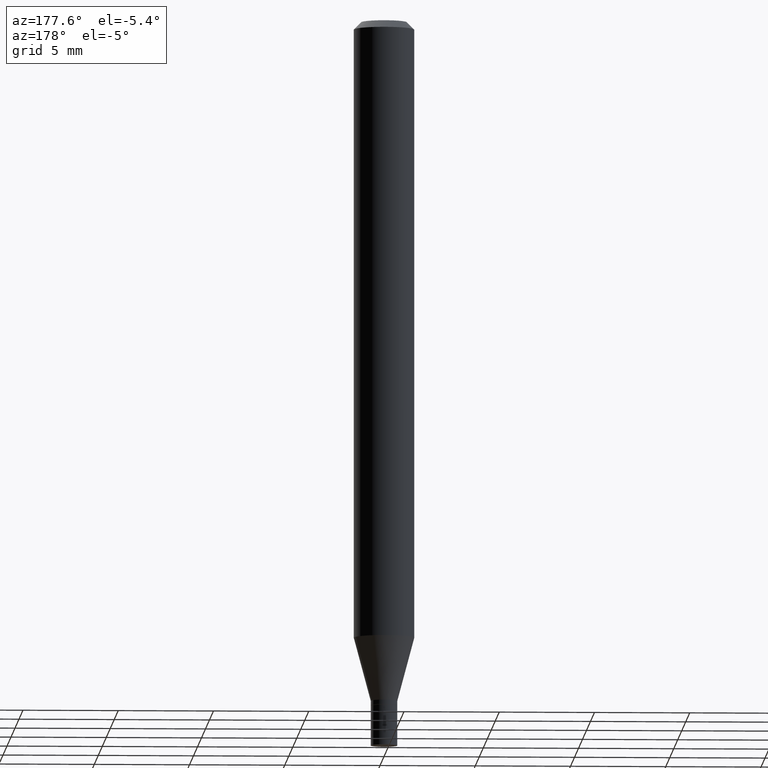
[diagram: clean part render]
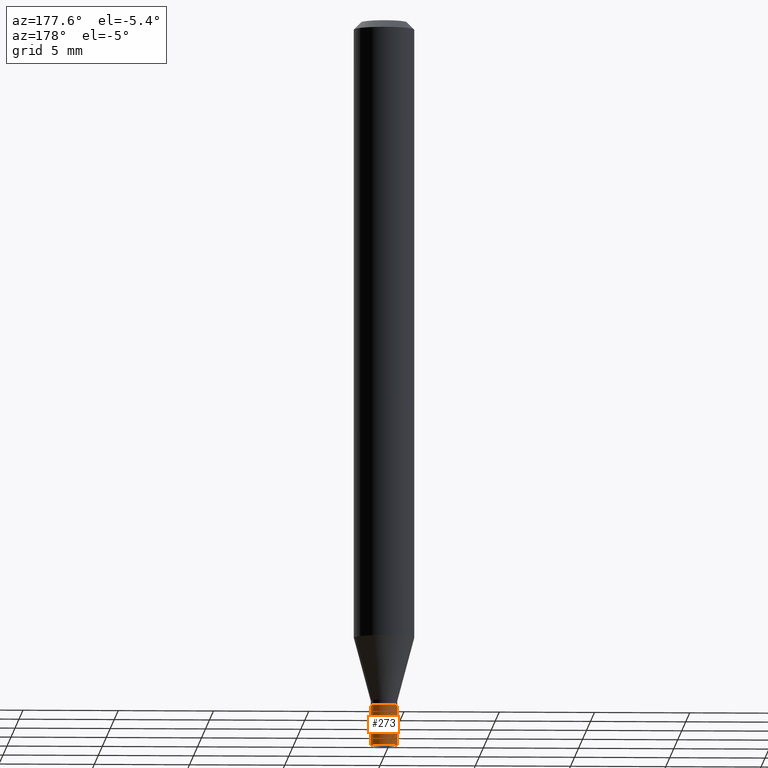
[diagram: same view with one face highlighted and labeled with its STEP entity id]
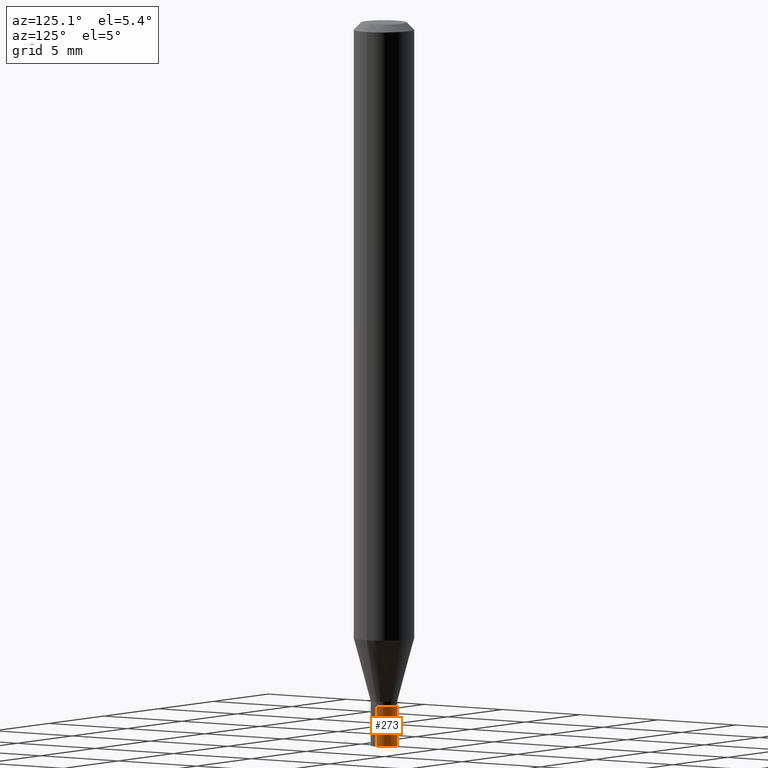
[diagram: same view with one face highlighted and labeled with its STEP entity id]
A machine part, auxiliary view. The second image highlights one B-rep face of the part: STEP entity #273.
A second angle (auxiliary view) of the same face is appended — the face is thin or edge-on in the first view.
In plain terms, the highlighted cylindrical surface (edge-blend (fillet) strip) has radius 0.6985 mm, axis along (-0, 0, 1).
Its self-contained STEP definition (entity closure, byte-faithful):
#10 = CARTESIAN_POINT ( 'NONE',  ( 0.02750000000000000014, -5.429253481901091458E-15, -1.500000000000000222 ) ) ;
#14 = ORIENTED_EDGE ( 'NONE', *, *, #423, .F. ) ;
#19 = DIRECTION ( 'NONE',  ( -2.445468806185136877E-29, 3.491481338843145188E-15, 1.000000000000000000 ) ) ;
#21 = CARTESIAN_POINT ( 'NONE',  ( 0.02750000000000000014, -5.139460530777110821E-15, -1.417000000000000259 ) ) ;
#26 = EDGE_CURVE ( 'NONE', #74, #115, #287, .T. ) ;
#29 = EDGE_CURVE ( 'NONE', #115, #181, #337, .T. ) ;
#39 = EDGE_CURVE ( 'NONE', #74, #266, #453, .T. ) ;
#46 = DIRECTION ( 'NONE',  ( -2.445468806185136877E-29, 3.491481338843145188E-15, 1.000000000000000000 ) ) ;
#56 = DIRECTION ( 'NONE',  ( -2.445468806185136597E-29, 3.491481338843145583E-15, 1.000000000000000000 ) ) ;
#65 = ORIENTED_EDGE ( 'NONE', *, *, #29, .T. ) ;
#67 = EDGE_LOOP ( 'NONE', ( #117, #65, #14, #249 ) ) ;
#69 = AXIS2_PLACEMENT_3D ( 'NONE', #239, #56, #345 ) ;
#74 = VERTEX_POINT ( 'NONE', #10 ) ;
#107 = CARTESIAN_POINT ( 'NONE',  ( 3.465229298364339647E-29, -4.947429057140738329E-15, -1.417000000000000259 ) ) ;
#115 = VERTEX_POINT ( 'NONE', #409 ) ;
#117 = ORIENTED_EDGE ( 'NONE', *, *, #26, .T. ) ;
#122 = CARTESIAN_POINT ( 'NONE',  ( 3.668203209277704895E-29, -5.237222008264718177E-15, -1.500000000000000222 ) ) ;
#126 = CARTESIAN_POINT ( 'NONE',  ( 0.02750000000000000014, -1.920314736363723444E-16, 1.340948613343882413E-30 ) ) ;
#145 = AXIS2_PLACEMENT_3D ( 'NONE', #122, #329, #269 ) ;
#158 = CYLINDRICAL_SURFACE ( 'NONE', #69, 0.02750000000000000014 ) ;
#181 = VERTEX_POINT ( 'NONE', #200 ) ;
#193 = VECTOR ( 'NONE', #19, 39.37007874015748143 ) ;
#200 = CARTESIAN_POINT ( 'NONE',  ( -0.02750000000000000014, -4.896926280368699739E-15, -1.417000000000000259 ) ) ;
#239 = CARTESIAN_POINT ( 'NONE',  ( 0.000000000000000000, 0.000000000000000000, 0.000000000000000000 ) ) ;
#243 = CIRCLE ( 'NONE', #464, 0.02750000000000000014 ) ;
#249 = ORIENTED_EDGE ( 'NONE', *, *, #39, .F. ) ;
#250 = DIRECTION ( 'NONE',  ( -2.445468806185136597E-29, 3.491481338843145583E-15, 1.000000000000000000 ) ) ;
#256 = DIRECTION ( 'NONE',  ( 1.000000000000000000, -6.982962677686279332E-15, 0.000000000000000000 ) ) ;
#265 = FACE_OUTER_BOUND ( 'NONE', #67, .T. ) ;
#266 = VERTEX_POINT ( 'NONE', #21 ) ;
#269 = DIRECTION ( 'NONE',  ( 1.000000000000000000, -6.982962677686279332E-15, 0.000000000000000000 ) ) ;
#273 = ADVANCED_FACE ( 'NONE', ( #265 ), #158, .T. ) ;
#284 = VECTOR ( 'NONE', #46, 39.37007874015748143 ) ;
#287 = CIRCLE ( 'NONE', #145, 0.02750000000000000014 ) ;
#329 = DIRECTION ( 'NONE',  ( -2.445468806185136597E-29, 3.491481338843145583E-15, 1.000000000000000000 ) ) ;
#337 = LINE ( 'NONE', #412, #284 ) ;
#345 = DIRECTION ( 'NONE',  ( 1.000000000000000000, -6.982962677686266711E-15, 4.876176775795935793E-29 ) ) ;
#409 = CARTESIAN_POINT ( 'NONE',  ( -0.02750000000000000014, -4.896926280368699739E-15, -1.500000000000000222 ) ) ;
#412 = CARTESIAN_POINT ( 'NONE',  ( -0.02750000000000000014, 1.953992523340275521E-16, -1.352707149820099181E-30 ) ) ;
#423 = EDGE_CURVE ( 'NONE', #266, #181, #243, .T. ) ;
#453 = LINE ( 'NONE', #126, #193 ) ;
#464 = AXIS2_PLACEMENT_3D ( 'NONE', #107, #250, #256 ) ;